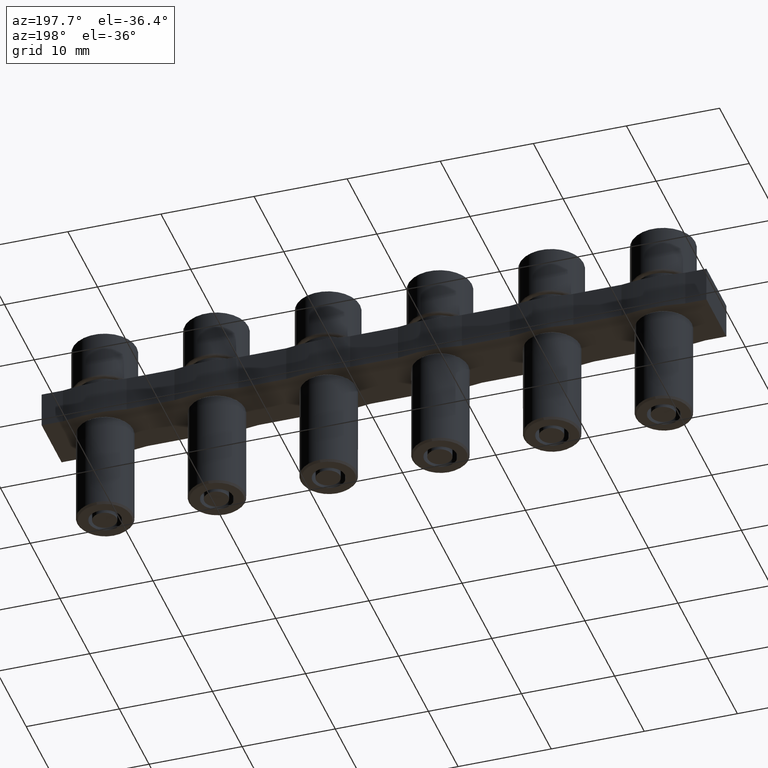
[diagram: clean part render]
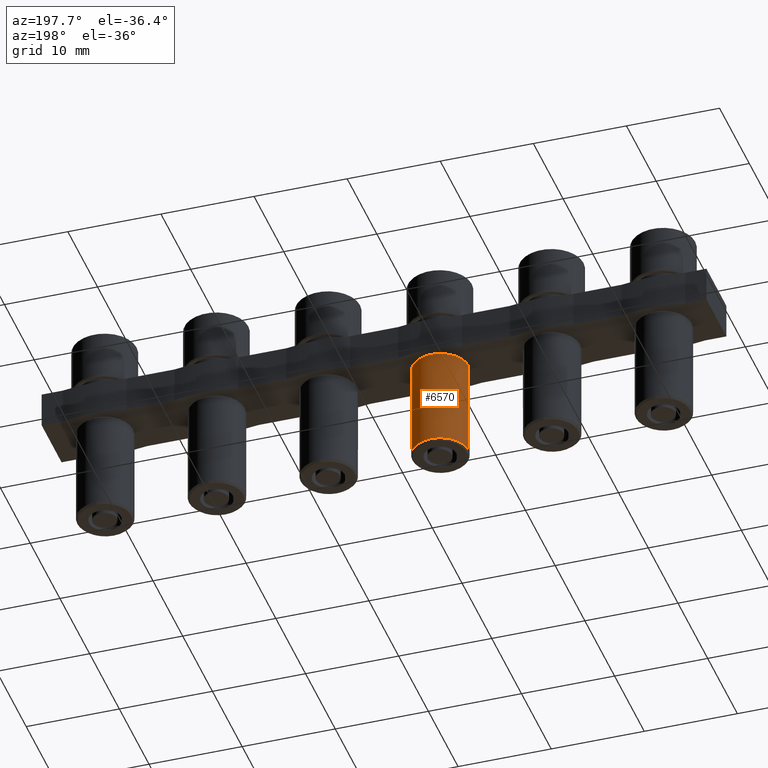
[diagram: same view with one face highlighted and labeled with its STEP entity id]
A machine part, auxiliary view. The second image highlights one B-rep face of the part: STEP entity #6570.
In plain terms, the highlighted cylindrical surface (edge-blend (fillet) strip) has radius 3 mm, axis along (-0, -0, -1).
Its self-contained STEP definition (entity closure, byte-faithful):
#991 = CYLINDRICAL_SURFACE ( 'NONE', #7991, 2.999999999999999100 ) ;
#995 = DIRECTION ( 'NONE',  ( -0.0000000000000000000, -0.0000000000000000000, -1.000000000000000000 ) ) ;
#1007 = DIRECTION ( 'NONE',  ( -1.000000000000000000, 0.0000000000000000000, 0.0000000000000000000 ) ) ;
#1021 = FACE_OUTER_BOUND ( 'NONE', #4865, .T. ) ;
#1035 = CARTESIAN_POINT ( 'NONE',  ( -24.06167760658912900, -4.578582932987532800E-015, -4.800000000080492800 ) ) ;
#1814 = CARTESIAN_POINT ( 'NONE',  ( -21.06167760659698700, -4.211188893243808600E-015, -4.900000000077398000 ) ) ;
#1860 = CARTESIAN_POINT ( 'NONE',  ( -24.06167760658912900, 2.999999999911679500, -15.60000000008048600 ) ) ;
#1880 = CARTESIAN_POINT ( 'NONE',  ( -27.06167760658912900, -4.578582932987532800E-015, -15.60000000008048600 ) ) ;
#1887 = CARTESIAN_POINT ( 'NONE',  ( -27.06167760658127000, -4.578582932987532800E-015, -4.900000000077398000 ) ) ;
#1893 = CARTESIAN_POINT ( 'NONE',  ( -21.06167760658913200, -4.211188893243326600E-015, -15.60000000008048600 ) ) ;
#3111 = LINE ( 'NONE', #3112, #7800 ) ;
#3112 = CARTESIAN_POINT ( 'NONE',  ( -21.06167760658913200, -4.211188893243326600E-015, -4.800000000080492800 ) ) ;
#3113 = DIRECTION ( 'NONE',  ( -0.0000000000000000000, -0.0000000000000000000, -1.000000000000000000 ) ) ;
#3133 = DIRECTION ( 'NONE',  ( -1.000000000000000000, 0.0000000000000000000, 0.0000000000000000000 ) ) ;
#3137 = CARTESIAN_POINT ( 'NONE',  ( -24.06167760658912900, -4.578582932987532800E-015, -4.900000000077398000 ) ) ;
#3154 = DIRECTION ( 'NONE',  ( -0.0000000000000000000, -0.0000000000000000000, 1.000000000000000000 ) ) ;
#3183 = LINE ( 'NONE', #3192, #7825 ) ;
#3192 = CARTESIAN_POINT ( 'NONE',  ( -27.06167760658912900, -4.578582932987532800E-015, -4.800000000080492800 ) ) ;
#3209 = DIRECTION ( 'NONE',  ( 0.0000000000000000000, 0.0000000000000000000, 1.000000000000000000 ) ) ;
#3216 = CARTESIAN_POINT ( 'NONE',  ( -24.06167760658912900, -4.578582932987532800E-015, -15.60000000008048600 ) ) ;
#3217 = DIRECTION ( 'NONE',  ( 0.0000000000000000000, 0.0000000000000000000, 1.000000000000000000 ) ) ;
#3226 = DIRECTION ( 'NONE',  ( -1.000000000000000000, 0.0000000000000000000, 0.0000000000000000000 ) ) ;
#3233 = DIRECTION ( 'NONE',  ( -0.0000000000000000000, -0.0000000000000000000, -1.000000000000000000 ) ) ;
#3239 = DIRECTION ( 'NONE',  ( -1.000000000000000000, 0.0000000000000000000, 0.0000000000000000000 ) ) ;
#3241 = CARTESIAN_POINT ( 'NONE',  ( -24.06167760658912900, -4.578582932987532800E-015, -15.60000000008048600 ) ) ;
#3468 = ORIENTED_EDGE ( 'NONE', *, *, #6386, .F. ) ;
#3476 = ORIENTED_EDGE ( 'NONE', *, *, #6388, .T. ) ;
#3477 = ORIENTED_EDGE ( 'NONE', *, *, #6338, .F. ) ;
#3482 = ORIENTED_EDGE ( 'NONE', *, *, #6385, .T. ) ;
#3491 = ORIENTED_EDGE ( 'NONE', *, *, #6332, .T. ) ;
#4865 = EDGE_LOOP ( 'NONE', ( #3477, #3491, #3476, #3482, #3468 ) ) ;
#5088 = VERTEX_POINT ( 'NONE', #1814 ) ;
#5127 = VERTEX_POINT ( 'NONE', #1893 ) ;
#5128 = VERTEX_POINT ( 'NONE', #1860 ) ;
#5129 = VERTEX_POINT ( 'NONE', #1880 ) ;
#5143 = VERTEX_POINT ( 'NONE', #1887 ) ;
#6332 = EDGE_CURVE ( 'NONE', #5088, #5127, #3111, .T. ) ;
#6338 = EDGE_CURVE ( 'NONE', #5088, #5143, #7789, .T. ) ;
#6385 = EDGE_CURVE ( 'NONE', #5128, #5129, #7823, .T. ) ;
#6386 = EDGE_CURVE ( 'NONE', #5143, #5129, #3183, .T. ) ;
#6388 = EDGE_CURVE ( 'NONE', #5127, #5128, #7877, .T. ) ;
#6570 = ADVANCED_FACE ( 'NONE', ( #1021 ), #991, .T. ) ;
#7789 = CIRCLE ( 'NONE', #7821, 2.999999999992141000 ) ;
#7800 = VECTOR ( 'NONE', #3113, 1000.000000000000000 ) ;
#7821 = AXIS2_PLACEMENT_3D ( 'NONE', #3137, #3154, #3133 ) ;
#7823 = CIRCLE ( 'NONE', #7824, 2.999999999999999100 ) ;
#7824 = AXIS2_PLACEMENT_3D ( 'NONE', #3216, #3217, #3226 ) ;
#7825 = VECTOR ( 'NONE', #3233, 1000.000000000000000 ) ;
#7877 = CIRCLE ( 'NONE', #7880, 2.999999999999999100 ) ;
#7880 = AXIS2_PLACEMENT_3D ( 'NONE', #3241, #3209, #3239 ) ;
#7991 = AXIS2_PLACEMENT_3D ( 'NONE', #1035, #995, #1007 ) ;